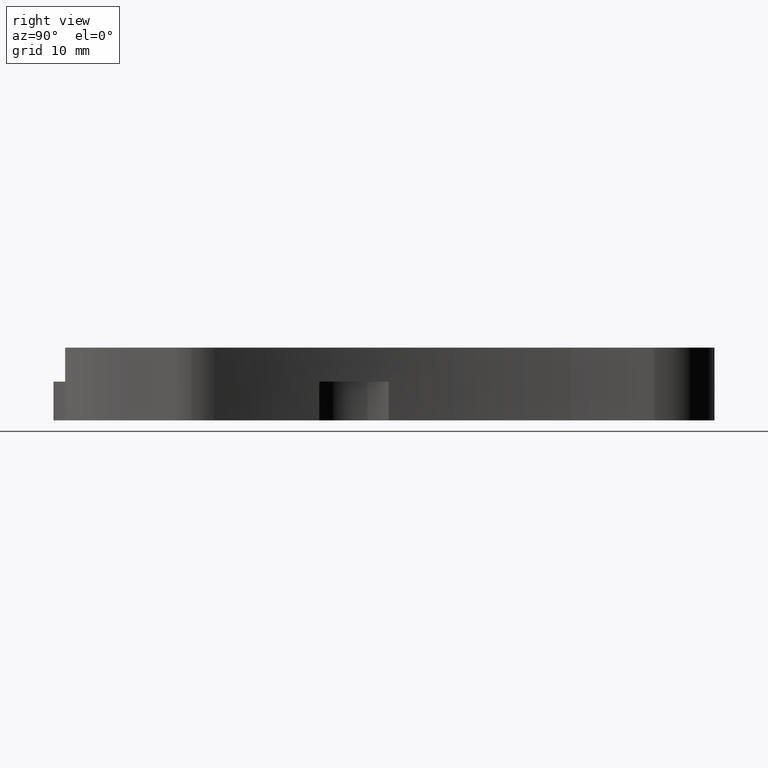
[diagram: clean part render]
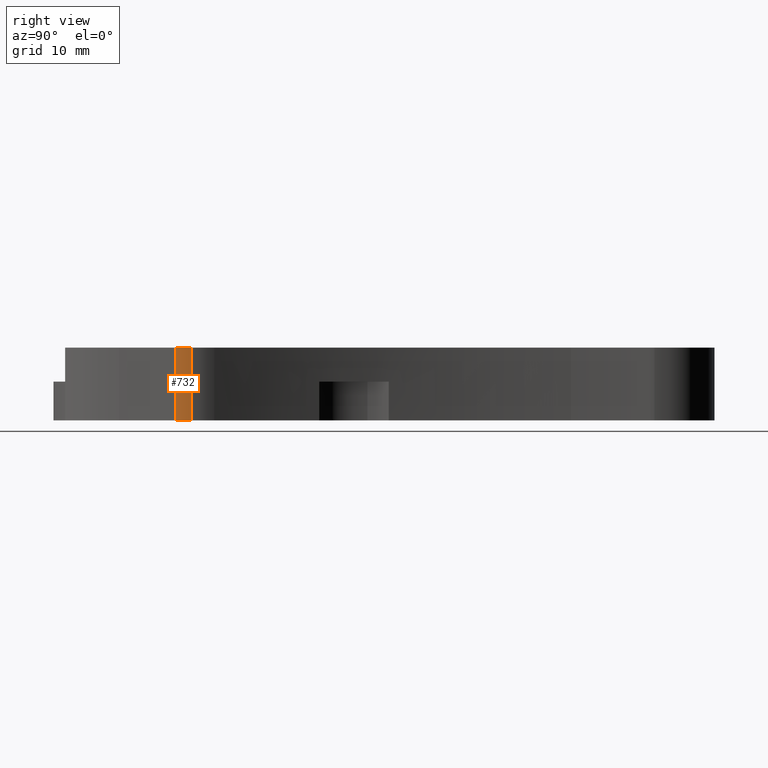
[diagram: same view with one face highlighted and labeled with its STEP entity id]
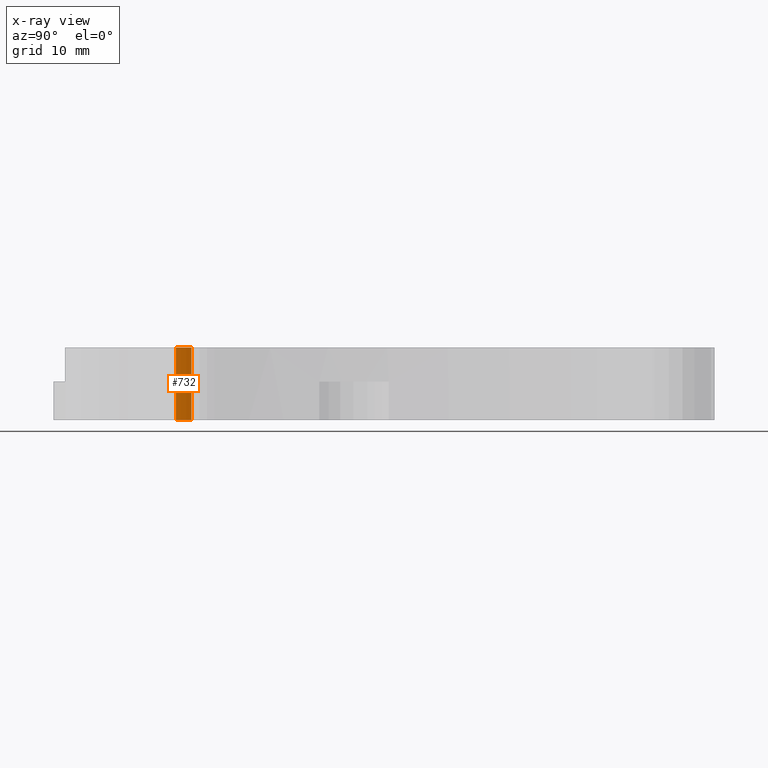
[diagram: x-ray of the same camera — body ghosted, the highlighted face saturated]
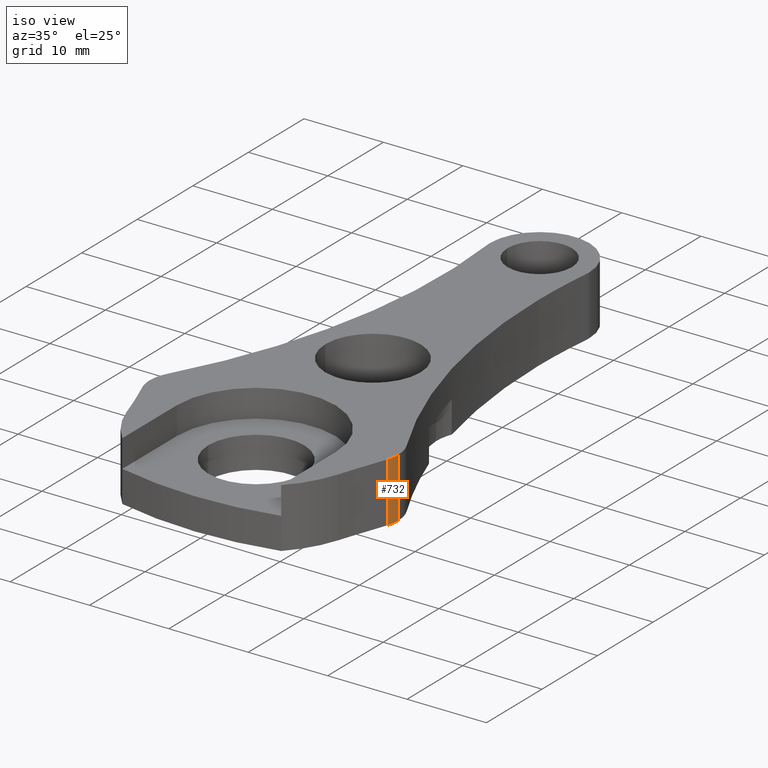
[diagram: same view with one face highlighted and labeled with its STEP entity id]
A machine part, right view. The second image highlights one B-rep face of the part: STEP entity #732.
The next image is the same camera in x-ray: the body ghosted, the highlighted face saturated — about 0% of this face is hidden behind the body in this view.
A second angle (iso view) of the same face is appended — the face is thin or edge-on in the first view.
In plain terms, the highlighted cylindrical surface (partial cylindrical patch) has radius 5 mm, axis along (0, -0, 1).
Its self-contained STEP definition (entity closure, byte-faithful):
#4 = DIRECTION ( 'NONE',  ( -2.627434620609032000E-046, 1.313717310304516000E-046, -1.000000000000000000 ) ) ;
#10 = EDGE_CURVE ( 'NONE', #446, #263, #490, .T. ) ;
#40 = DIRECTION ( 'NONE',  ( 1.000000000000000000, 0.0000000000000000000, 0.0000000000000000000 ) ) ;
#123 = EDGE_CURVE ( 'NONE', #471, #446, #264, .T. ) ;
#131 = CARTESIAN_POINT ( 'NONE',  ( 10.63904025362763600, 3.228825712556809600, 3.500000000000003100 ) ) ;
#148 = EDGE_CURVE ( 'NONE', #263, #378, #206, .T. ) ;
#153 = EDGE_CURVE ( 'NONE', #471, #378, #783, .T. ) ;
#164 = CARTESIAN_POINT ( 'NONE',  ( 15.63904025362763600, 3.228825712556809600, -4.000000000000003600 ) ) ;
#166 = ORIENTED_EDGE ( 'NONE', *, *, #148, .F. ) ;
#180 = VECTOR ( 'NONE', #435, 1000.000000000000000 ) ;
#193 = ORIENTED_EDGE ( 'NONE', *, *, #153, .T. ) ;
#196 = DIRECTION ( 'NONE',  ( 2.627434620609032000E-046, -1.313717310304516000E-046, 1.000000000000000000 ) ) ;
#201 = CARTESIAN_POINT ( 'NONE',  ( 15.63904025362763600, 3.228825712556809600, 79.07476084379766200 ) ) ;
#206 = CIRCLE ( 'NONE', #678, 5.000000000000000900 ) ;
#249 = DIRECTION ( 'NONE',  ( 1.000000000000000000, 0.0000000000000000000, 0.0000000000000000000 ) ) ;
#263 = VERTEX_POINT ( 'NONE', #369 ) ;
#264 = CIRCLE ( 'NONE', #899, 5.000000000000000900 ) ;
#369 = CARTESIAN_POINT ( 'NONE',  ( 15.36923433256859400, 1.608559075378921000, 3.500000000000003100 ) ) ;
#371 = DIRECTION ( 'NONE',  ( 1.000000000000000000, 0.0000000000000000000, 0.0000000000000000000 ) ) ;
#378 = VERTEX_POINT ( 'NONE', #852 ) ;
#435 = DIRECTION ( 'NONE',  ( 2.627434620609032000E-046, -1.313717310304516000E-046, 1.000000000000000000 ) ) ;
#446 = VERTEX_POINT ( 'NONE', #711 ) ;
#471 = VERTEX_POINT ( 'NONE', #164 ) ;
#490 = LINE ( 'NONE', #987, #180 ) ;
#510 = VECTOR ( 'NONE', #196, 1000.000000000000000 ) ;
#545 = AXIS2_PLACEMENT_3D ( 'NONE', #855, #768, #371 ) ;
#551 = FACE_OUTER_BOUND ( 'NONE', #955, .T. ) ;
#588 = CARTESIAN_POINT ( 'NONE',  ( 10.63904025362763600, 3.228825712556809600, -4.000000000000003600 ) ) ;
#625 = ORIENTED_EDGE ( 'NONE', *, *, #10, .F. ) ;
#678 = AXIS2_PLACEMENT_3D ( 'NONE', #131, #947, #40 ) ;
#711 = CARTESIAN_POINT ( 'NONE',  ( 15.36923433256859400, 1.608559075378921000, -4.000000000000003600 ) ) ;
#732 = ADVANCED_FACE ( 'NONE', ( #551 ), #788, .T. ) ;
#768 = DIRECTION ( 'NONE',  ( 2.627434620609032000E-046, -1.313717310304516000E-046, 1.000000000000000000 ) ) ;
#783 = LINE ( 'NONE', #201, #510 ) ;
#788 = CYLINDRICAL_SURFACE ( 'NONE', #545, 5.000000000000000900 ) ;
#852 = CARTESIAN_POINT ( 'NONE',  ( 15.63904025362763600, 3.228825712556809600, 3.500000000000003100 ) ) ;
#855 = CARTESIAN_POINT ( 'NONE',  ( 10.63904025362763600, 3.228825712556809600, 79.07476084379766200 ) ) ;
#899 = AXIS2_PLACEMENT_3D ( 'NONE', #588, #4, #249 ) ;
#947 = DIRECTION ( 'NONE',  ( 2.627434620609032000E-046, -1.313717310304516000E-046, 1.000000000000000000 ) ) ;
#955 = EDGE_LOOP ( 'NONE', ( #1022, #193, #166, #625 ) ) ;
#987 = CARTESIAN_POINT ( 'NONE',  ( 15.36923433256864900, 1.608559075378907000, 79.07476084379766200 ) ) ;
#1022 = ORIENTED_EDGE ( 'NONE', *, *, #123, .F. ) ;